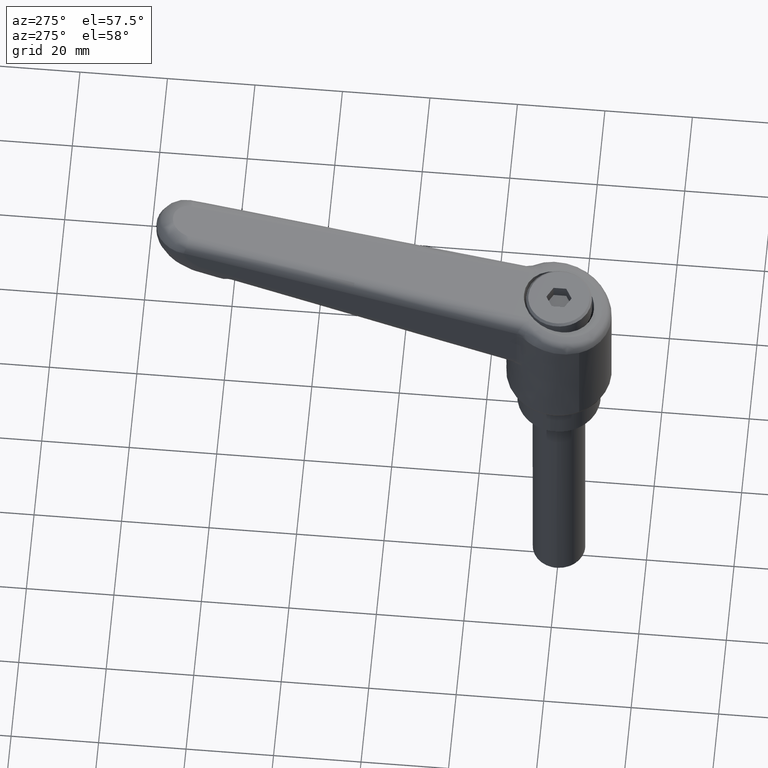
[diagram: clean part render]
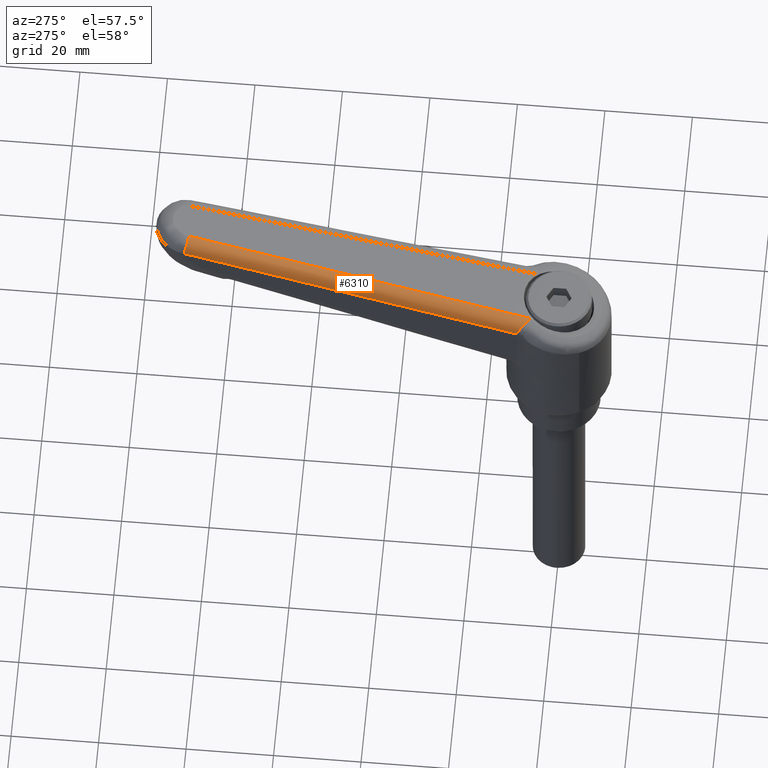
[diagram: same view with one face highlighted and labeled with its STEP entity id]
A machine part, auxiliary view. The second image highlights one B-rep face of the part: STEP entity #6310.
In plain terms, the highlighted face is a freeform B-spline surface patch.
Its self-contained STEP definition (entity closure, byte-faithful):
#4716=CARTESIAN_POINT('',(5.899904612967671,6.031578376217630,42.733727815799909));
#4717=VERTEX_POINT('',#4716);
#4758=CARTESIAN_POINT('',(8.841669019642421,8.976546322690471,40.397985290362151));
#4759=VERTEX_POINT('',#4758);
#4760=CARTESIAN_POINT('',(8.841669019642490,8.976546322690471,40.397985290362151));
#4761=CARTESIAN_POINT('',(8.784408903133917,8.978030632871789,40.614470243490608));
#4762=CARTESIAN_POINT('',(8.712905481343981,8.955123244230689,40.821489110897701));
#4763=CARTESIAN_POINT('',(8.585530316400375,8.886840205035638,41.118733343151867));
#4764=CARTESIAN_POINT('',(8.539578473323866,8.858299177465488,41.215768905013789));
#4765=CARTESIAN_POINT('',(8.441062083461182,8.789905458229196,41.404440341300223));
#4766=CARTESIAN_POINT('',(8.389458198972413,8.750737415507121,41.494277838064768));
#4767=CARTESIAN_POINT('',(8.227966952242808,8.619592803388937,41.751281620371422));
#4768=CARTESIAN_POINT('',(8.111408253521983,8.514033297054631,41.906141528903547));
#4769=CARTESIAN_POINT('',(7.860572578898151,8.269806632143457,42.183816788710480));
#4770=CARTESIAN_POINT('',(7.730842664945962,8.135607573925840,42.301639832784240));
#4771=CARTESIAN_POINT('',(7.529643930052201,7.919431337674119,42.450908978713358));
#4772=CARTESIAN_POINT('',(7.461468164530021,7.844865876101135,42.496041635277592));
#4773=CARTESIAN_POINT('',(7.357450727328101,7.729476453174739,42.556979084598993));
#4774=CARTESIAN_POINT('',(7.322448986255073,7.690379925224032,42.576175228829783));
#4775=CARTESIAN_POINT('',(7.252499614426967,7.611776407447842,42.612003975720270));
#4776=CARTESIAN_POINT('',(7.217473458380919,7.572182918261357,42.628685717021519));
#4777=CARTESIAN_POINT('',(7.042039173005557,7.372861780490124,42.706169096670450));
#4778=CARTESIAN_POINT('',(6.900721077616174,7.209111727793012,42.749338202277933));
#4779=CARTESIAN_POINT('',(6.722135101758079,7.000278736483548,42.781946187292313));
#4780=CARTESIAN_POINT('',(6.686320887983416,6.958302666069690,42.787391729478777));
#4781=CARTESIAN_POINT('',(6.614479497570279,6.873954401982154,42.796154145794560));
#4782=CARTESIAN_POINT('',(6.578410986047067,6.831533380151607,42.799470719125623));
#4783=CARTESIAN_POINT('',(6.470543268720883,6.704516313079630,42.806221197183163));
#4784=CARTESIAN_POINT('',(6.398884750452932,6.619936869290965,42.806495694939258));
#4785=CARTESIAN_POINT('',(6.255890245818320,6.451096582109982,42.799061073704522));
#4786=CARTESIAN_POINT('',(6.184554588328503,6.366835557313601,42.791350639598051));
#4787=CARTESIAN_POINT('',(6.077673977330620,6.240767495759101,42.774018776845793));
#4788=CARTESIAN_POINT('',(6.024264632896112,6.177814262075449,42.763909490539767));
#4789=CARTESIAN_POINT('',(5.970881176494664,6.114997674302082,42.751661907478969));
#4790=CARTESIAN_POINT('',(5.935295778220033,6.073152015774611,42.743023675216882));
#4791=CARTESIAN_POINT('',(5.917445403482045,6.052198018737346,42.738450336233583));
#4792=CARTESIAN_POINT('',(5.899904612967641,6.031578376217611,42.733727815799952));
#4793=B_SPLINE_CURVE_WITH_KNOTS('',3,(#4760,#4761,#4762,#4763,#4764,#4765,#4766,#4767,#4768,#4769,#4770,#4771,#4772,#4773,#4774,#4775,#4776,#4777,#4778,#4779,#4780,#4781,#4782,#4783,#4784,#4785,#4786,#4787,#4788,#4789,#4790,#4791,#4792),.UNSPECIFIED.,.F.,.U.,(4,2,2,2,2,2,2,2,2,2,2,2,2,2,1,2,4),(0.0,0.125000000000002,0.187500000000003,0.250000000000004,0.375000000000003,0.500000000000002,0.562500000000000,0.593749999999999,0.624999999999998,0.749999999999998,0.781249999999998,0.812499999999998,0.874999999999999,0.937500000000000,0.968750000000000,0.984375000000000,1.0),.UNSPECIFIED.);
#4794=EDGE_CURVE('',#4759,#4717,#4793,.T.);
#6229=CARTESIAN_POINT('',(85.181394708208785,6.997650033486260,60.950987970872312));
#6230=VERTEX_POINT('',#6229);
#6231=CARTESIAN_POINT('',(84.323733712413699,3.998657469176409,63.847835250144492));
#6232=VERTEX_POINT('',#6231);
#6233=CARTESIAN_POINT('',(85.181394708208728,6.997650033486267,60.950987970872291));
#6234=CARTESIAN_POINT('',(84.857011700837717,7.006058765948663,62.156648778463250));
#6235=CARTESIAN_POINT('',(84.605457038067783,6.126444831231721,63.006303180384407));
#6236=CARTESIAN_POINT('',(84.353902375297849,5.246830896514777,63.855957582305606));
#6237=CARTESIAN_POINT('',(84.323733712413713,3.998657469176409,63.847835250144563));
#6245=(BOUNDED_CURVE()B_SPLINE_CURVE(2,(#6233,#6234,#6235,#6236,#6237),.UNSPECIFIED.,.F.,.U.)B_SPLINE_CURVE_WITH_KNOTS((3,2,3),(0.0,0.500000000000000,1.0),.UNSPECIFIED.)CURVE()GEOMETRIC_REPRESENTATION_ITEM()RATIONAL_B_SPLINE_CURVE((1.0,0.923233699275802,1.0,0.923233699275802,1.0))REPRESENTATION_ITEM(''));
#6246=EDGE_CURVE('',#6230,#6232,#6245,.T.);
#6282=CARTESIAN_POINT('',(87.170688547055008,6.944040626413843,61.371979389358387));
#6283=CARTESIAN_POINT('',(4.776653099449475,9.079878154374029,39.188970266150058));
#6284=CARTESIAN_POINT('',(86.300680640906776,7.090702494149906,64.617558371904195));
#6285=CARTESIAN_POINT('',(3.906645193301229,9.226540022110097,42.434549248695859));
#6286=CARTESIAN_POINT('',(86.281161576903813,3.736733132375931,64.367128903643788));
#6287=CARTESIAN_POINT('',(3.887126129298256,5.872570660336116,42.184119780435452));
#6295=(BOUNDED_SURFACE()B_SPLINE_SURFACE(1,2,((#6282,#6284,#6286),(#6283,#6285,#6287)),.UNSPECIFIED.,.F.,.F.,.U.)B_SPLINE_SURFACE_WITH_KNOTS((2,2),(3,3),(0.0,85.354699771292431),(0.0,5.376423489165791),.UNSPECIFIED.)GEOMETRIC_REPRESENTATION_ITEM()RATIONAL_B_SPLINE_SURFACE(((1.0,0.664439425700556,0.996380867621538),(1.0,0.664439425700556,0.996380867621538)))REPRESENTATION_ITEM('')SURFACE());
#6296=CARTESIAN_POINT('',(8.841669019642421,8.976546322690471,40.397985290362151));
#6297=CARTESIAN_POINT('',(85.181394708208785,6.997650033486260,60.950987970872312));
#6298=QUASI_UNIFORM_CURVE('',1,(#6296,#6297),.UNSPECIFIED.,.F.,.U.);
#6299=EDGE_CURVE('',#4759,#6230,#6298,.T.);
#6300=ORIENTED_EDGE('',*,*,#6299,.F.);
#6301=ORIENTED_EDGE('',*,*,#4794,.T.);
#6302=CARTESIAN_POINT('',(84.323733712413699,3.998657469176409,63.847835250144492));
#6303=CARTESIAN_POINT('',(5.899904612967671,6.031578376217630,42.733727815799909));
#6304=QUASI_UNIFORM_CURVE('',1,(#6302,#6303),.UNSPECIFIED.,.F.,.U.);
#6305=EDGE_CURVE('',#6232,#4717,#6304,.T.);
#6306=ORIENTED_EDGE('',*,*,#6305,.F.);
#6307=ORIENTED_EDGE('',*,*,#6246,.F.);
#6308=EDGE_LOOP('',(#6300,#6301,#6306,#6307));
#6309=FACE_OUTER_BOUND('',#6308,.T.);
#6310=ADVANCED_FACE('',(#6309),#6295,.T.);